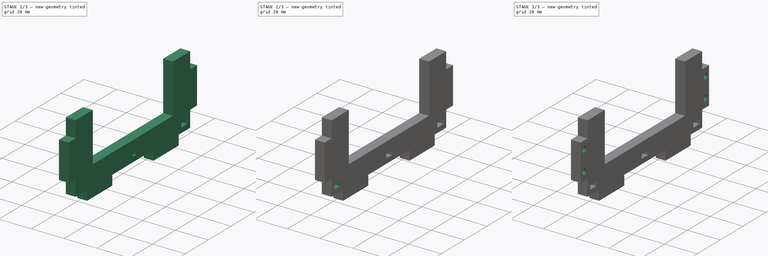
[diagram: build sequence overview — one tinted view per stage of 3, left to right]
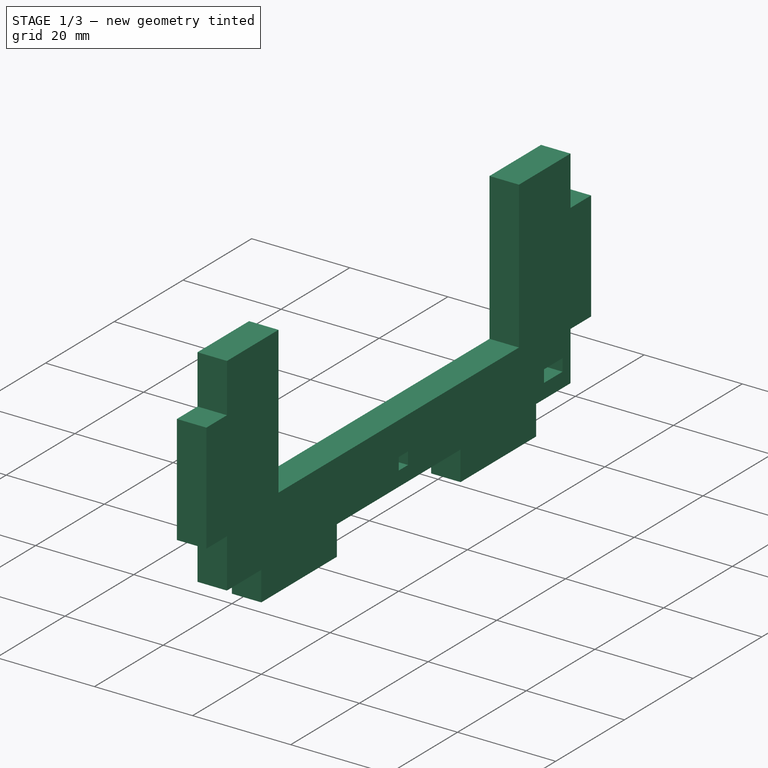
[diagram: stage 1 of 3 — iso view after this stage's code; geometry added in this stage tinted green]
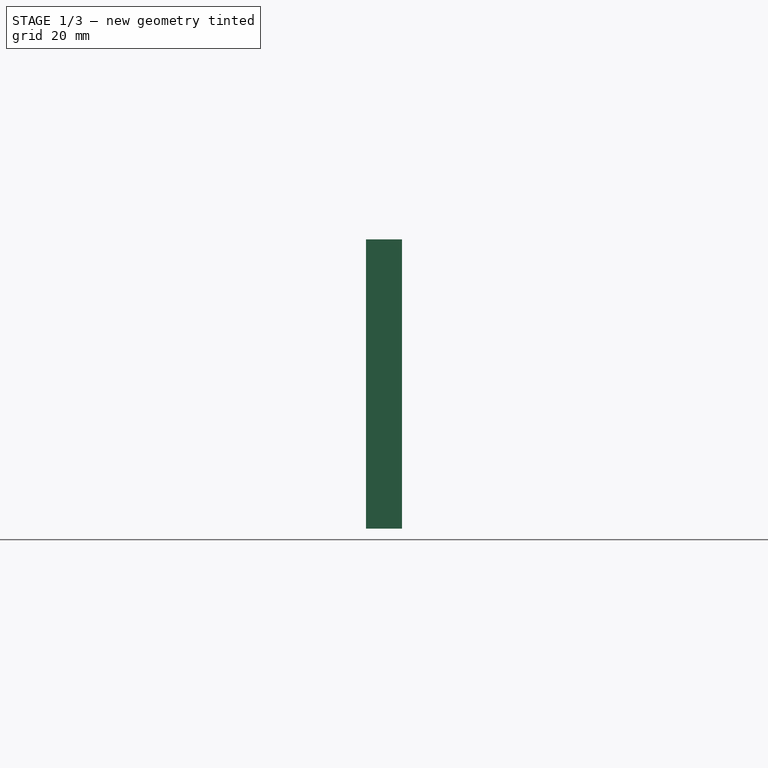
[diagram: stage 1 of 3 — front view after this stage's code; geometry added in this stage tinted green]
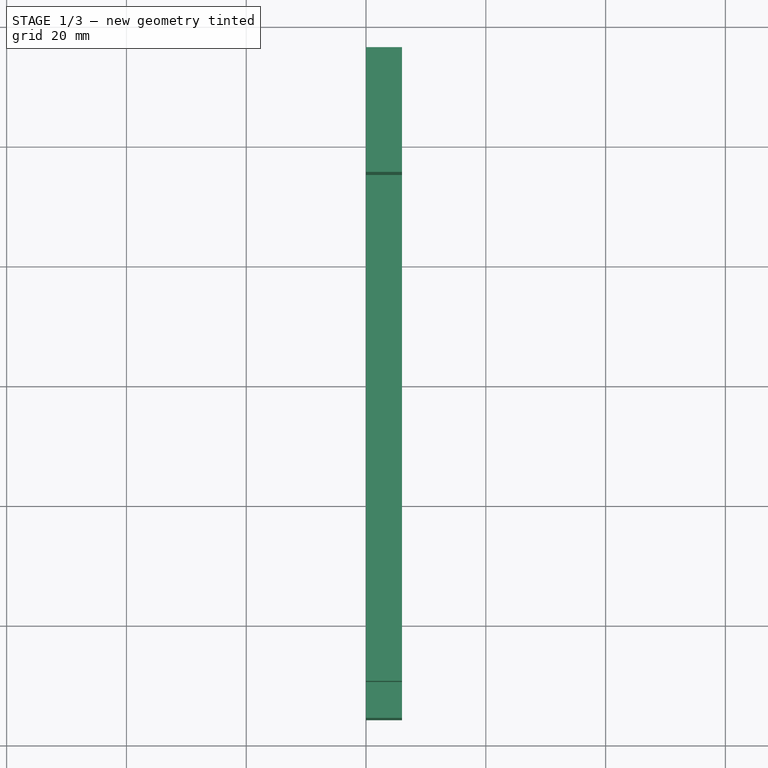
[diagram: stage 1 of 3 — top view after this stage's code; geometry added in this stage tinted green]
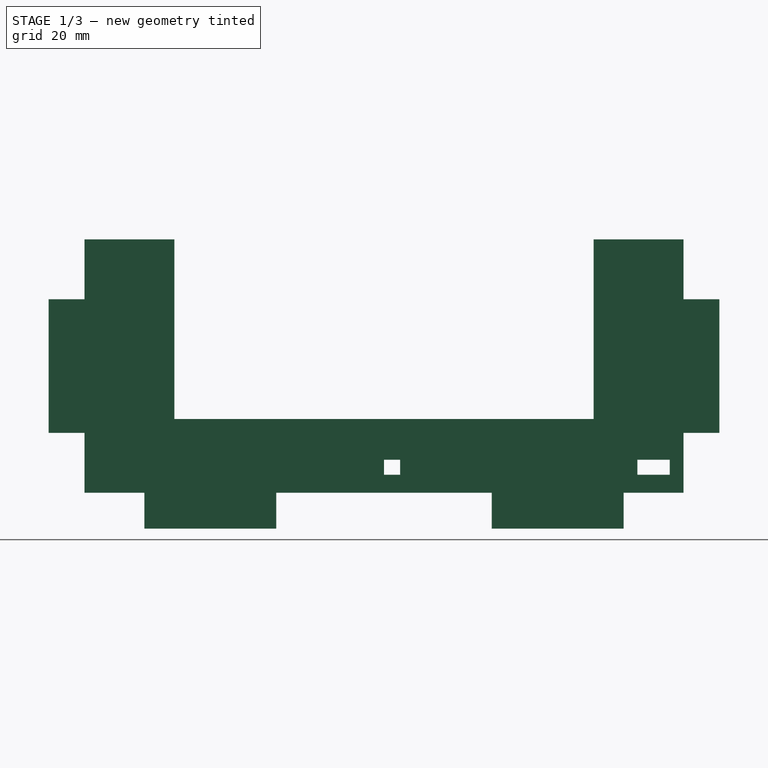
[diagram: stage 1 of 3 — right view after this stage's code; geometry added in this stage tinted green]
FCSTD DOCUMENT  (FreeCAD 0.19R24291 (Git))
Label: Liaison supports moteurs
License: All rights reserved
LicenseURL: http://en.wikipedia.org/wiki/All_rights_reserved
objects: Sketcher::SketchObject×3, PartDesign::Pocket×2, PartDesign::Mirrored×2, PartDesign::Pad×1, PartDesign::Body×1
note: 12 computed .brp shape members not serialized (recipe doc carries the construction recipe); baked Part::Feature solids carry a one-line shape summary decoded from their .brp

FEATURE [Sketcher::SketchObject] Sketch  label="base_liaison"
  FullyConstrained = true
  MapMode = 5
  Placement = pos=(0,0,0) rot=(0.57735,0.57735,0.57735;2.0944rad)
  Support = -> [YZ_Plane]
  sketch-geometry (24):
    g0: LineSegment StartX=-50 StartY=30 StartZ=0 EndX=-35 EndY=30 EndZ=0
    g1: LineSegment StartX=-35 StartY=30 StartZ=0 EndX=-35 EndY=0 EndZ=0
    g2: LineSegment StartX=-35 StartY=0 StartZ=0 EndX=35 EndY=0 EndZ=0
    g3: LineSegment StartX=35 StartY=0 StartZ=0 EndX=35 EndY=30 EndZ=0
    g4: LineSegment StartX=35 StartY=30 StartZ=0 EndX=50 EndY=30 EndZ=0
    g5: LineSegment StartX=50 StartY=30 StartZ=0 EndX=50 EndY=20 EndZ=0
    g6: LineSegment StartX=50 StartY=20 StartZ=0 EndX=56 EndY=20 EndZ=0
    g7: LineSegment StartX=56 StartY=20 StartZ=0 EndX=56 EndY=-2.3 EndZ=0
    g8: LineSegment StartX=56 StartY=-2.3 StartZ=0 EndX=50 EndY=-2.3 EndZ=0
    g9: LineSegment StartX=50 StartY=-2.3 StartZ=0 EndX=50 EndY=-12.3 EndZ=0
    g10: LineSegment StartX=50 StartY=-12.3 StartZ=0 EndX=40 EndY=-12.3 EndZ=0
    g11: LineSegment StartX=40 StartY=-12.3 StartZ=0 EndX=40 EndY=-18.3 EndZ=0
    g12: LineSegment StartX=40 StartY=-18.3 StartZ=0 EndX=18 EndY=-18.3 EndZ=0
    g13: LineSegment StartX=18 StartY=-18.3 StartZ=0 EndX=18 EndY=-12.3 EndZ=0
    g14: LineSegment StartX=18 StartY=-12.3 StartZ=0 EndX=-18 EndY=-12.3 EndZ=0
    g15: LineSegment StartX=-18 StartY=-12.3 StartZ=0 EndX=-18 EndY=-18.3 EndZ=0
    g16: LineSegment StartX=-18 StartY=-18.3 StartZ=0 EndX=-40 EndY=-18.3 EndZ=0
    g17: LineSegment StartX=-40 StartY=-18.3 StartZ=0 EndX=-40 EndY=-12.3 EndZ=0
    g18: LineSegment StartX=-40 StartY=-12.3 StartZ=0 EndX=-50 EndY=-12.3 EndZ=0
    g19: LineSegment StartX=-50 StartY=-12.3 StartZ=0 EndX=-50 EndY=-2.3 EndZ=0
    g20: LineSegment StartX=-50 StartY=-2.3 StartZ=0 EndX=-56 EndY=-2.3 EndZ=0
    g21: LineSegment StartX=-56 StartY=-2.3 StartZ=0 EndX=-56 EndY=20 EndZ=0
    g22: LineSegment StartX=-56 StartY=20 StartZ=0 EndX=-50 EndY=20 EndZ=0
    g23: LineSegment StartX=-50 StartY=20 StartZ=0 EndX=-50 EndY=30 EndZ=0
  constraints (71):
    c: Horizontal(g0)
    c: Coincident(g0,g1)
    c: Vertical(g1)
    c: Coincident(g1,g2)
    c: Coincident(g2,g3)
    c: Vertical(g3)
    c: Coincident(g3,g4)
    c: Horizontal(g4)
    c: Coincident(g4,g5)
    c: Vertical(g5)
    c: Coincident(g5,g6)
    c: Horizontal(g6)
    c: Coincident(g6,g7)
    c: Vertical(g7)
    c: Coincident(g7,g8)
    c: Horizontal(g8)
    c: Coincident(g8,g9)
    c: Vertical(g9)
    c: Coincident(g9,g10)
    c: Horizontal(g10)
    c: Coincident(g10,g11)
    c: Vertical(g11)
    c: Coincident(g11,g12)
    c: Horizontal(g12)
    c: Coincident(g12,g13)
    c: Vertical(g13)
    c: Coincident(g13,g14)
    c: Horizontal(g14)
    c: Coincident(g14,g15)
    c: Vertical(g15)
    c: Coincident(g15,g16)
    c: Horizontal(g16)
    c: Coincident(g16,g17)
    c: Vertical(g17)
    c: Coincident(g17,g18)
    c: Horizontal(g18)
    c: Coincident(g18,g19)
    c: Vertical(g19)
    c: Coincident(g19,g20)
    c: Horizontal(g20)
    c: Coincident(g20,g21)
    c: Vertical(g21)
    c: Coincident(g21,g22)
    c: Horizontal(g22)
    c: Coincident(g22,g23)
    c: Vertical(g23)
    c: Coincident(g23,g0)
    c: DistanceY(g11,g11) = 6
    c: Equal(g11,g13)
    c: Equal(g13,g15)
    c: Equal(g15,g17)
    c: Equal(g17,g20)
    c: Equal(g20,g22)
    c: Equal(g22,g6)
    c: Equal(g6,g8)
    c: DistanceX(g21,g0) = 21
    c: Equal(g0,g4)
    c: DistanceY(g9,g4) = 42.3
    c: DistanceY(g5,g5) = 10
    c: Equal(g5,g9)
    c: Equal(g9,g19)
    c: Equal(g19,g23)
    c: Equal(g7,g21)
    c: DistanceX(g18,g18) = 10
    c: Equal(g18,g10)
    c: DistanceX(g16,g16) = 22
    c: Equal(g16,g12)
    c: PointOnObject(g-1,g2)
    c: Symmetric(g1,g2,g-2)
    c: DistanceX(g2,g2) = 70
    c: DistanceY(g1,g1) = 30
FEATURE [PartDesign::Pad] Pad  label="base_liaison001"
  Direction = (1,1,1)
  Length = 6
  Length2 = 100
  Placement = pos=(0,0,0) rot=(0.57735,0.57735,0.57735;2.0944rad)
  Profile = -> Sketch
  Type = 0
FEATURE [Sketcher::SketchObject] Sketch001
  ExternalGeometry = -> [Pad]
  FullyConstrained = true
  MapMode = 5
  Placement = pos=(-5e-16,0,0) rot=(0.57735,0.57735,-0.57735;4.18879rad)
  Support = -> [Pad]
  sketch-geometry (11):
    g0: LineSegment StartX=47.7 StartY=9.3 StartZ=0 EndX=42.3 EndY=9.3 EndZ=0
    g1: LineSegment StartX=42.3 StartY=9.3 StartZ=0 EndX=42.3 EndY=6.8 EndZ=0
    g2: LineSegment StartX=42.3 StartY=6.8 StartZ=0 EndX=47.7 EndY=6.8 EndZ=0
    g3: LineSegment StartX=47.7 StartY=6.8 StartZ=0 EndX=47.7 EndY=9.3 EndZ=0
    g4: LineSegment StartX=47.7 StartY=6.8 StartZ=0 EndX=42.3 EndY=9.3 EndZ=0
    g5: LineSegment StartX=47.7 StartY=9.3 StartZ=0 EndX=42.3 EndY=6.8 EndZ=0
    g6: GeomPoint X=45 Y=8.05 Z=0
    g7: LineSegment StartX=0 StartY=6.8 StartZ=0 EndX=2.7 EndY=6.8 EndZ=0
    g8: LineSegment StartX=2.7 StartY=6.8 StartZ=0 EndX=2.7 EndY=9.3 EndZ=0
    g9: LineSegment StartX=2.7 StartY=9.3 StartZ=0 EndX=0 EndY=9.3 EndZ=0
    g10: LineSegment StartX=0 StartY=9.3 StartZ=0 EndX=0 EndY=6.8 EndZ=0
  constraints (30):
    c: Coincident(g0,g1)
    c: Coincident(g1,g2)
    c: Coincident(g2,g3)
    c: Coincident(g3,g0)
    c: Horizontal(g0)
    c: Horizontal(g2)
    c: Vertical(g1)
    c: Vertical(g3)
    c: DistanceX(g2,g2) = 5.4
    c: DistanceY(g1,g1) = 2.5
    c: DistanceY(g0,g-3) = 3
    c: Coincident(g4,g2)
    c: Coincident(g4,g0)
    c: Coincident(g5,g0)
    c: Coincident(g5,g1)
    c: PointOnObject(g6,g5)
    c: PointOnObject(g6,g4)
    c: DistanceX(g6,g-4) = 5
    c: Coincident(g7,g8)
    c: Coincident(g8,g9)
    c: Coincident(g9,g10)
    c: Coincident(g10,g7)
    c: Horizontal(g7)
    c: Horizontal(g9)
    c: Vertical(g8)
    c: Vertical(g10)
    c: PointOnObject(g7,g-2)
    c: DistanceX(g7,g7) = 2.7
    c: Equal(g8,g1)
    c: DistanceY(g8,g-5) = 3
FEATURE [PartDesign::Pocket] Pocket  label="trou_ecrous"
  BaseFeature = -> Pad
  Length = 5
  Length2 = 100
  Placement = pos=(0,0,0) rot=(0.57735,0.57735,0.57735;2.0944rad)
  Profile = -> Sketch001
  Type = 1
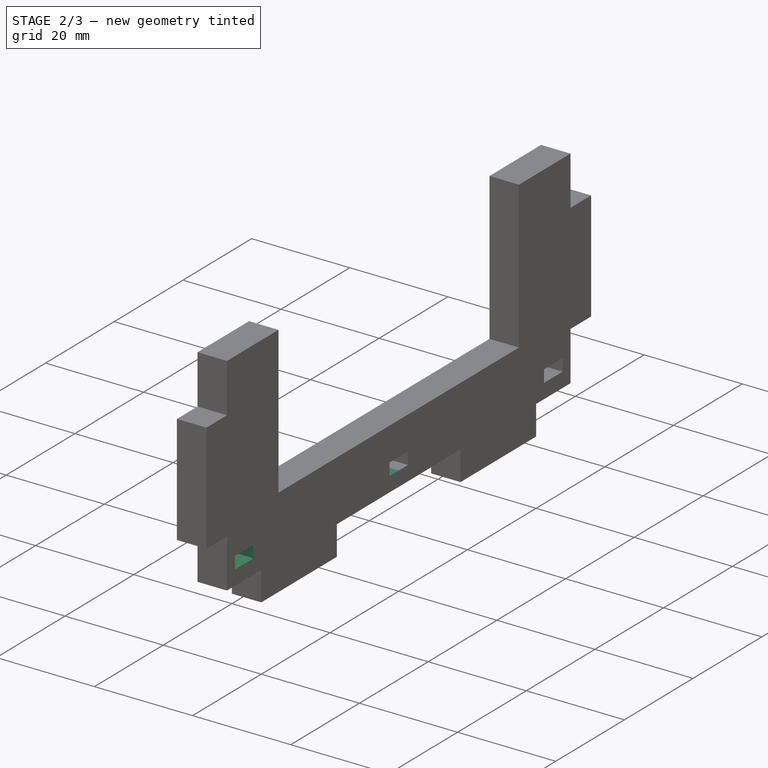
[diagram: stage 2 of 3 — iso view after this stage's code; geometry added in this stage tinted green]
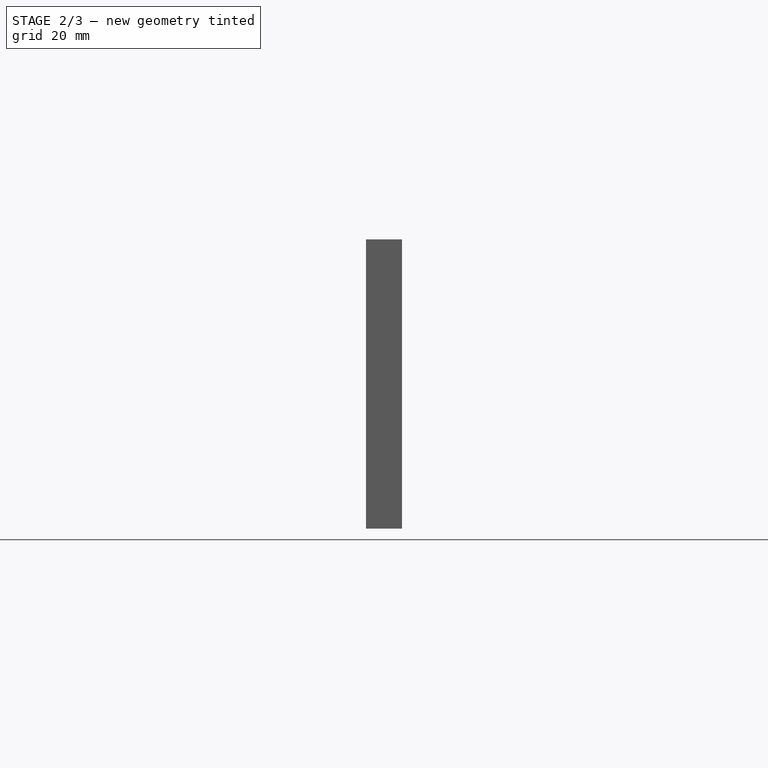
[diagram: stage 2 of 3 — front view after this stage's code; geometry added in this stage tinted green]
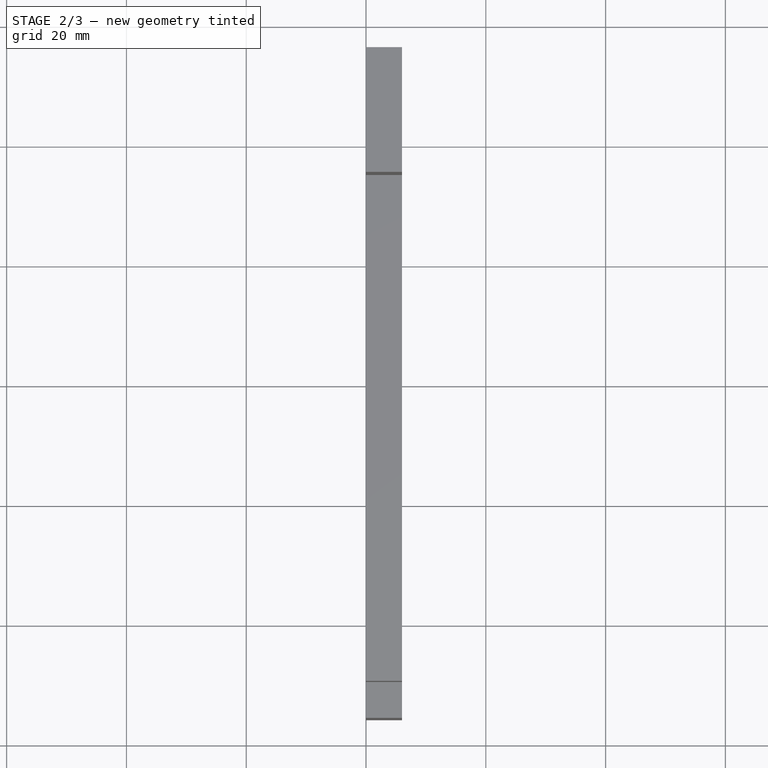
[diagram: stage 2 of 3 — top view after this stage's code; geometry added in this stage tinted green]
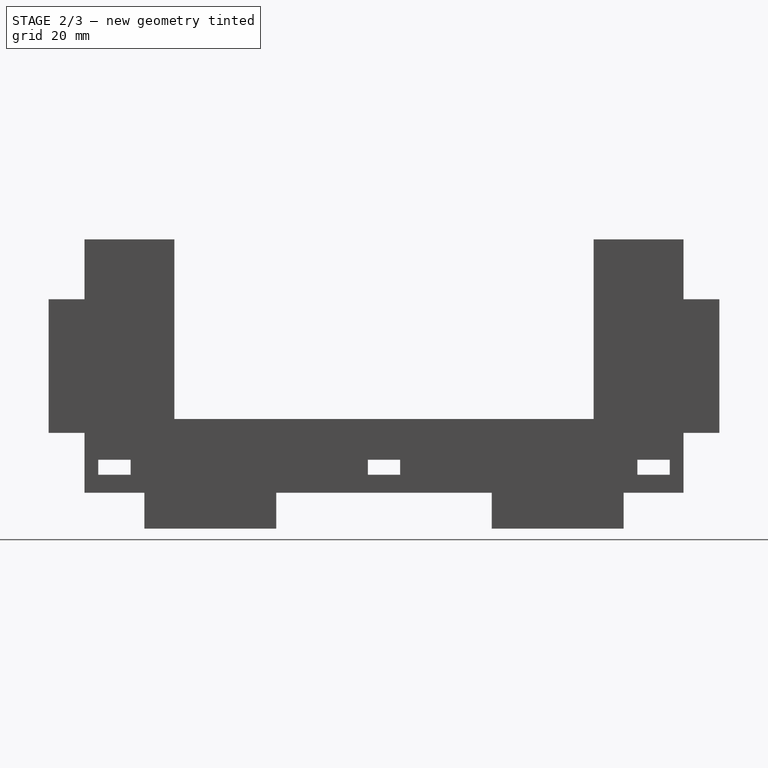
[diagram: stage 2 of 3 — right view after this stage's code; geometry added in this stage tinted green]
FEATURE [PartDesign::Mirrored] Mirrored  label="trou_ecrous_mirrored"
  BaseFeature = -> Pocket
  MirrorPlane = -> Sketch001 [V_Axis]
  Originals = -> [Pocket]
  Placement = pos=(0,0,0) rot=(0.57735,0.57735,0.57735;2.0944rad)
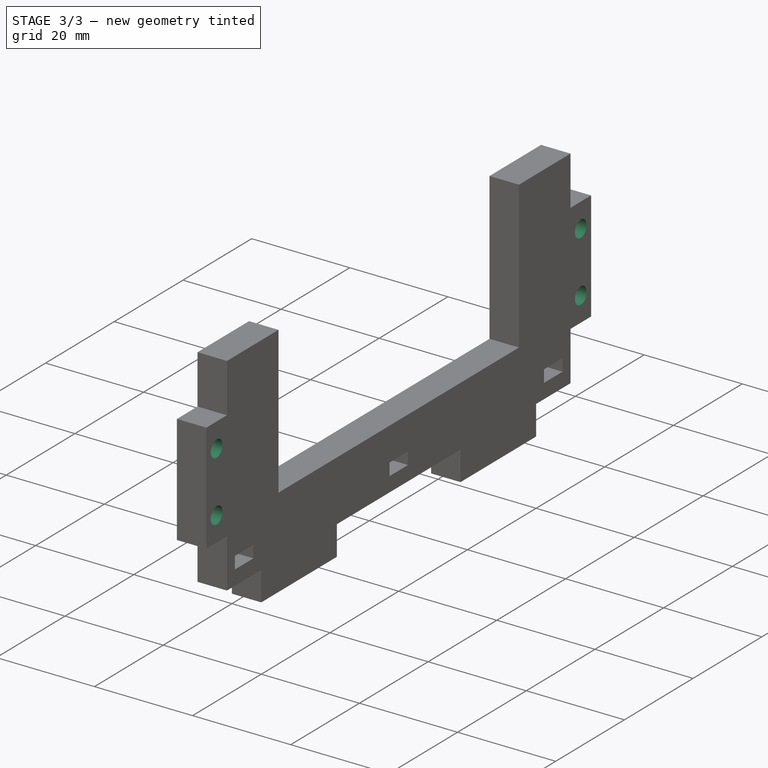
[diagram: stage 3 of 3 — iso view after this stage's code; geometry added in this stage tinted green]
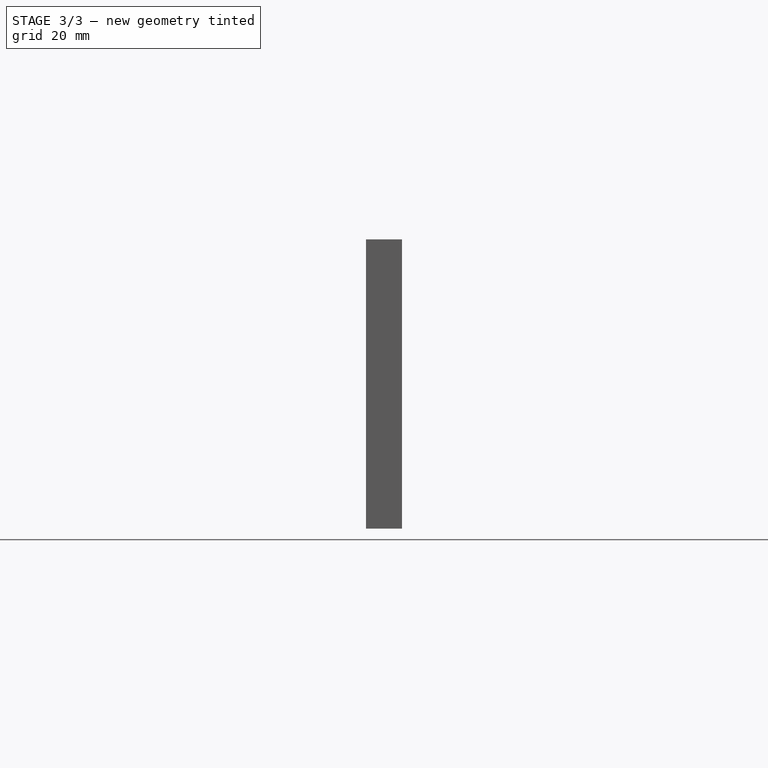
[diagram: stage 3 of 3 — front view after this stage's code; geometry added in this stage tinted green]
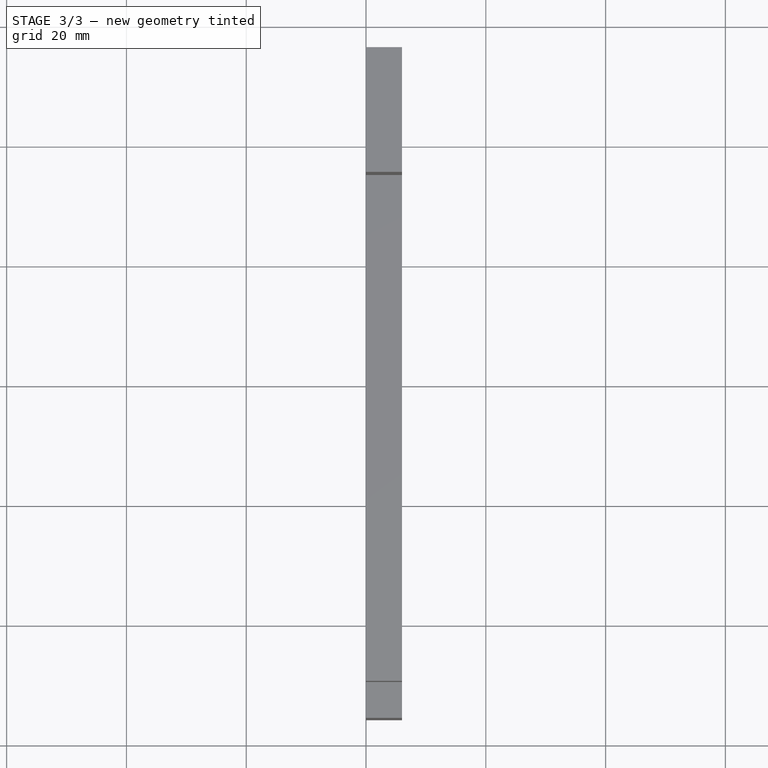
[diagram: stage 3 of 3 — top view after this stage's code; geometry added in this stage tinted green]
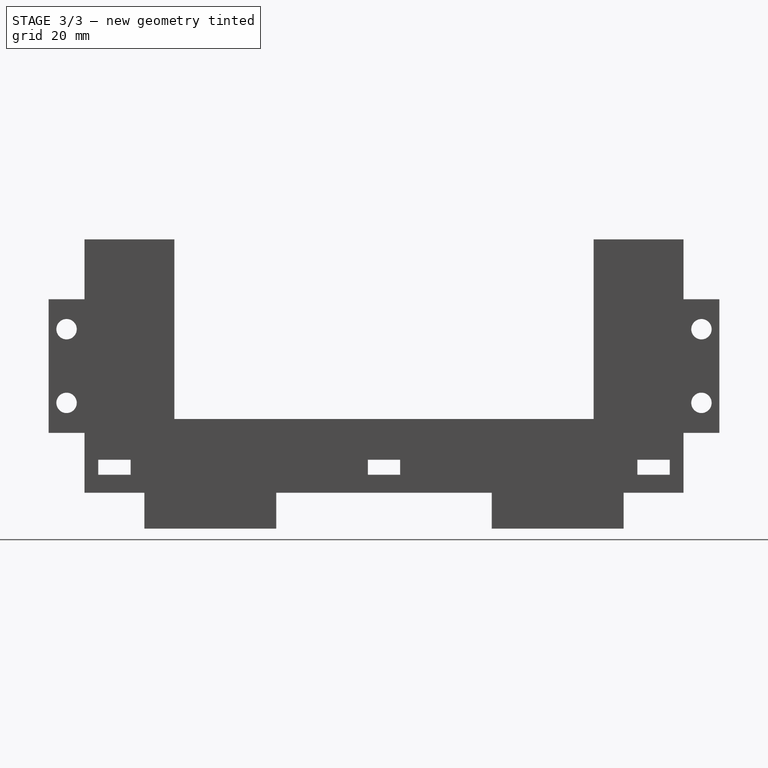
[diagram: stage 3 of 3 — right view after this stage's code; geometry added in this stage tinted green]
FEATURE [Sketcher::SketchObject] Sketch002  label="trous_m3"
  ExternalGeometry = -> [Mirrored]
  FullyConstrained = true
  MapMode = 5
  Placement = pos=(-1e-15,0,0) rot=(-0.57735,-0.57735,0.57735;2.0944rad)
  Support = -> [Mirrored]
  sketch-geometry (4):
    g0: LineSegment StartX=53 StartY=-20 StartZ=0 EndX=53 EndY=2.3 EndZ=0
    g1: Circle CenterX=53 CenterY=-15 CenterZ=0 NormalX=0 NormalY=0 NormalZ=1 AngleXU=0 Radius=1.7
    g2: GeomPoint X=53 Y=-8.85 Z=0
    g3: Circle CenterX=53 CenterY=-2.7 CenterZ=0 NormalX=0 NormalY=0 NormalZ=1 AngleXU=0 Radius=1.7
  constraints (10):
    c: PointOnObject(g0,g-5)
    c: Vertical(g0)
    c: Symmetric(g-4,g-3,g0)
    c: PointOnObject(g1,g0)
    c: Radius(g1) = 1.7
    c: Symmetric(g0,g0,g2)
    c: DistanceY(g-4,g1) = 5
    c: PointOnObject(g3,g0)
    c: Radius(g3) = 1.7
    c: DistanceY(g3,g-5) = 5
FEATURE [PartDesign::Pocket] Pocket001  label="trous_m004"
  BaseFeature = -> Mirrored
  Length = 5
  Length2 = 100
  Placement = pos=(0,0,0) rot=(0.57735,0.57735,0.57735;2.0944rad)
  Profile = -> Sketch002
  Type = 1
FEATURE [PartDesign::Mirrored] Mirrored001
  BaseFeature = -> Pocket001
  MirrorPlane = -> Sketch002 [V_Axis]
  Originals = -> [Pocket001]
  Placement = pos=(0,0,0) rot=(0.57735,0.57735,0.57735;2.0944rad)
FEATURE [PartDesign::Body] Body
  Group = -> [Sketch,Pad,Sketch001,Pocket,Mirrored,Sketch002,Pocket001,Mirrored001]
  Origin = -> Origin
  Tip = -> Mirrored001
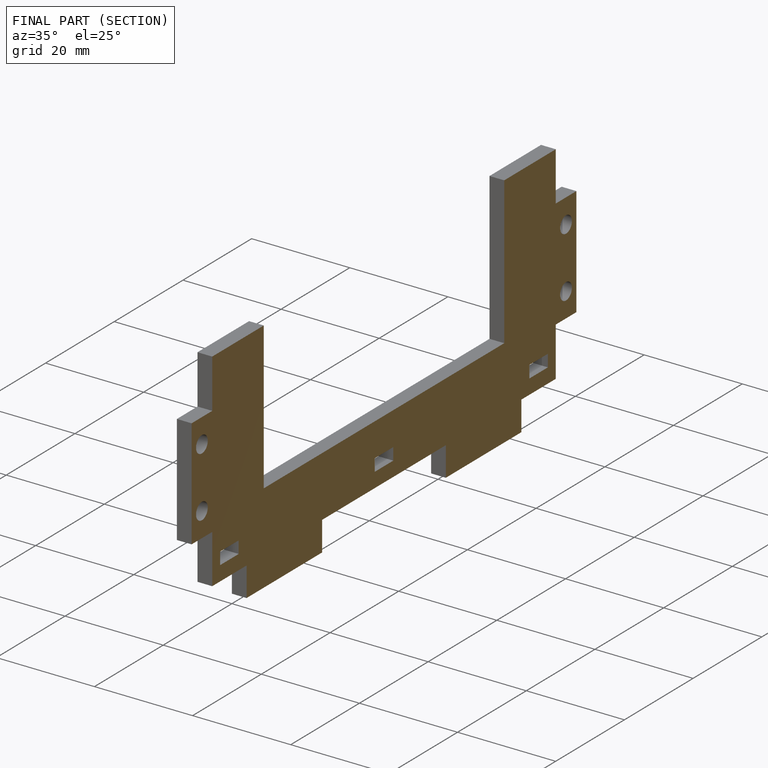
[diagram: finished part — half-section view (interior)]
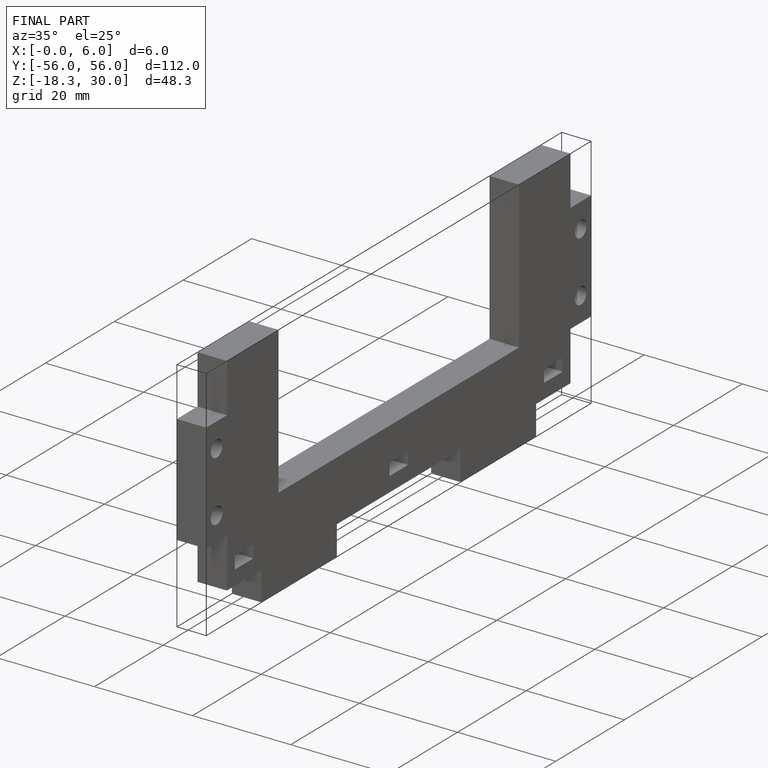
[diagram: finished part — iso view with bounding-box wireframe]
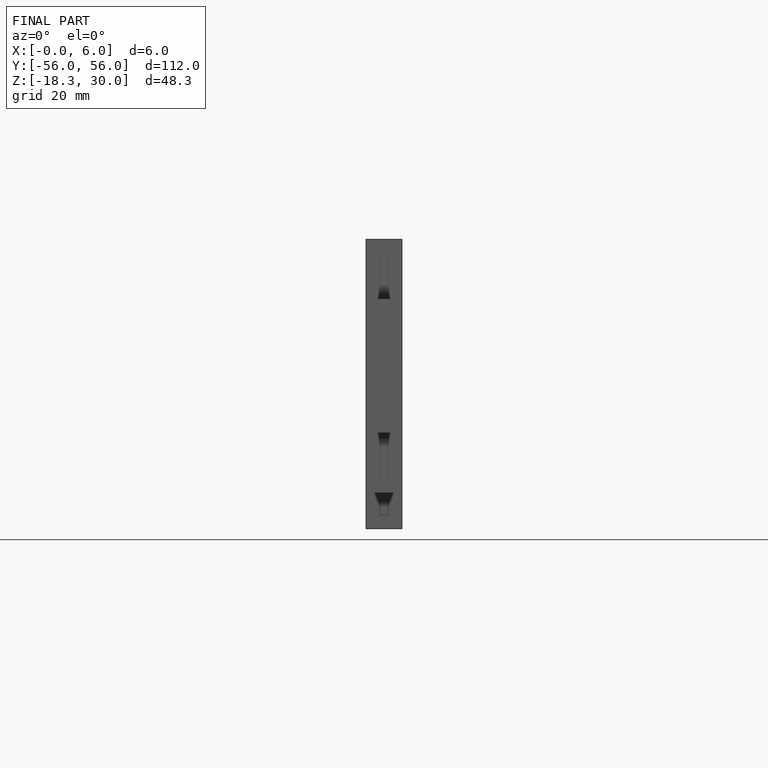
[diagram: finished part — front view with bounding-box wireframe]
